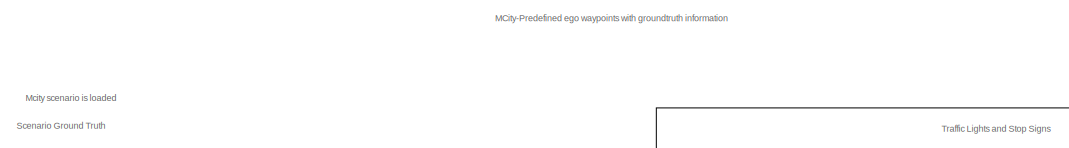
[diagram: root canvas - part 1/4, top center region]
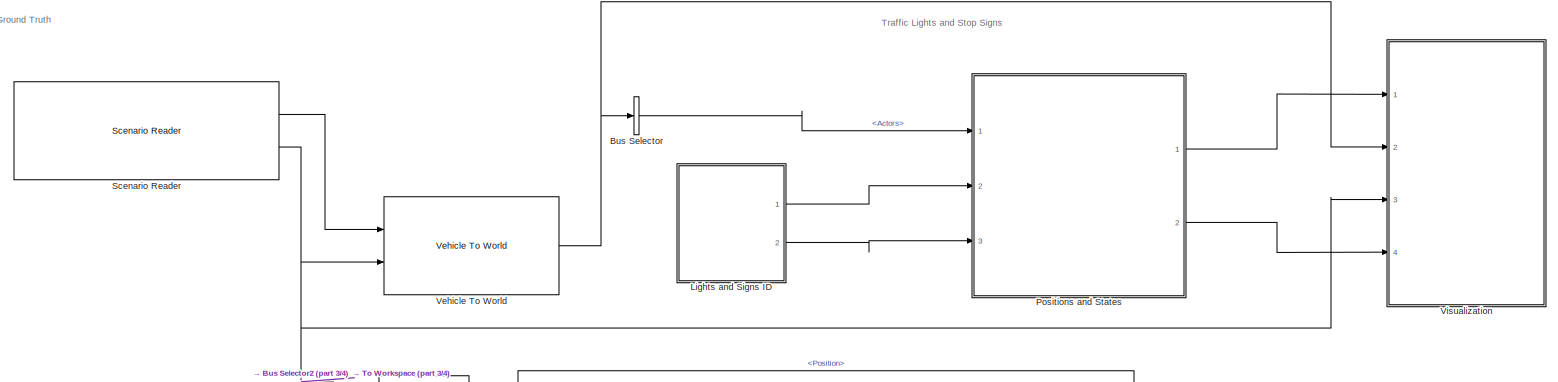
[diagram: root canvas - part 2/4, full width, middle band]
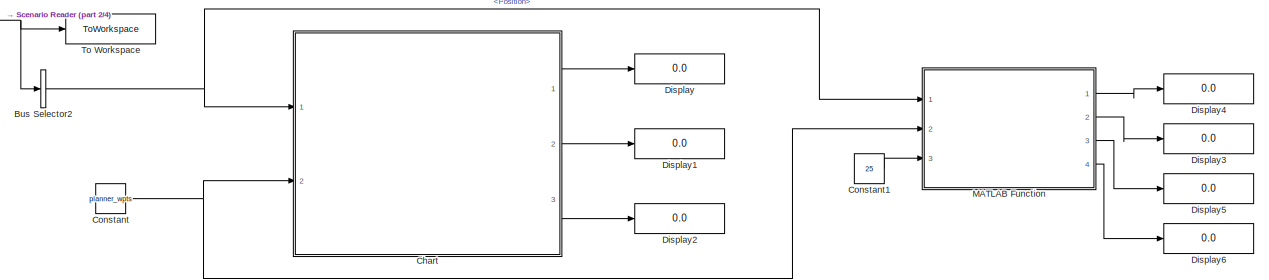
[diagram: root canvas - part 3/4, full width, bottom band]
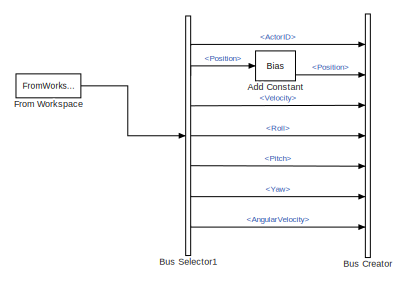
[diagram: root canvas - part 4/4, bottom left region]
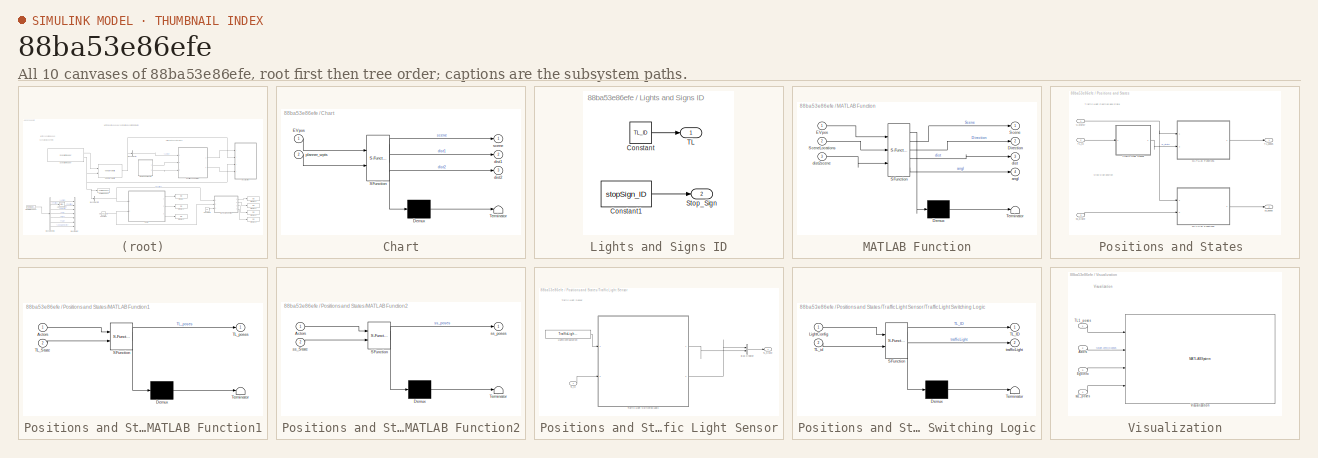
[diagram: thumbnail index - all 10 canvases of the model, root first then tree order]
MODEL slx_88ba53e86efe
KIND model
CONFIG AbsTol = auto
CONFIG EnableMultiTasking = off
CONFIG FixedStep = auto
CONFIG MaxStep = auto
CONFIG MinStep = auto
CONFIG RelTol = 1e-3
CONFIG SampleTimeConstraint = Unconstrained
CONFIG SolverName = FixedStepAuto
CONFIG StartTime = 0.0
CONFIG StopTime = stopTime
WORKSPACE source: mxarray member
WORKSPACE firstWarning = 1
WORKSPACE originalScenarioChecksum = '114339432DE22364D47BB28FC96DC10C'
BLOCK [Bias] Add Constant
  Bias = 5
  Commented = on
  SaturateOnIntegerOverflow = off
BLOCK [BusCreator] Bus Creator
  Commented = on
  DisplayOption = bar
  InheritFromInputs = on
  Inputs = 7
  OutDataTypeStr = Bus: egoout_bus
  Ports = [7, 1]
BLOCK [BusSelector] Bus Selector
  OutputSignals = Actors
  Ports = [1, 1]
BLOCK [BusSelector] Bus Selector1
  Commented = on
  OutputSignals = ActorID,Position,Velocity,Roll,Pitch,Yaw,AngularVelocity
  Ports = [1, 7]
BLOCK [BusSelector] Bus Selector2
  OutputSignals = Position
  Ports = [1, 1]
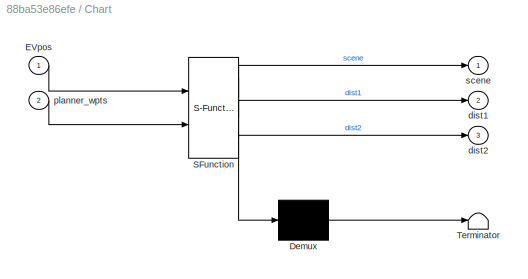
BLOCK [SubSystem] Chart
  Commented = on
  ErrorFcn = Stateflow.Translate.translate
  PermitHierarchicalResolution = ExplicitOnly
  Ports = [2, 3]
  RequestExecContextInheritance = off
  SFBlockType = Chart
  TreatAsAtomicUnit = on
BLOCK [Demux] Chart/ Demux 
  Outputs = 1
  Ports = [1, 1]
BLOCK [S-Function] Chart/ SFunction 
  EnableBusSupport = on
  FunctionName = sf_sfun
  PortCounts = [2 4]
  Ports = [2, 4]
  SFcnIsStateOwnerBlock = off
  SFunctionDeploymentMode = off
  Tag = Stateflow S-Function 4
BLOCK [Terminator] Chart/ Terminator 
BLOCK [Inport] Chart/EVpos
BLOCK [Outport] Chart/dist1
  Port = 2
BLOCK [Outport] Chart/dist2
  Port = 3
BLOCK [Inport] Chart/planner_wpts
  Port = 2
BLOCK [Outport] Chart/scene
BLOCK [Constant] Constant
  Value = planner_wpts
  VectorParams1D = off
BLOCK [Constant] Constant1
  Value = 25
BLOCK [Display] Display
  Commented = on
  Decimation = 1
  Ports = [1]
BLOCK [Display] Display1
  Commented = on
  Decimation = 1
  Ports = [1]
BLOCK [Display] Display2
  Commented = on
  Decimation = 1
  Ports = [1]
BLOCK [Display] Display3
  Decimation = 1
  Ports = [1]
BLOCK [Display] Display4
  Decimation = 1
  Ports = [1]
BLOCK [Display] Display5
  Decimation = 1
  Ports = [1]
BLOCK [Display] Display6
  Decimation = 1
  Ports = [1]
BLOCK [FromWorkspace] From Workspace
  Commented = on
  OutDataTypeStr = Bus: egoout_bus
  SampleTime = Ts
  VariableName = egoout
BLOCK [SubSystem] Lights and Signs ID
  Ports = [0, 2]
  RequestExecContextInheritance = off
BLOCK [Constant] Lights and Signs ID/Constant
  Value = TL_ID
BLOCK [Constant] Lights and Signs ID/Constant1
  Value = stopSign_ID
BLOCK [Outport] Lights and Signs ID/Stop_Sign
  Port = 2
BLOCK [Outport] Lights and Signs ID/TL
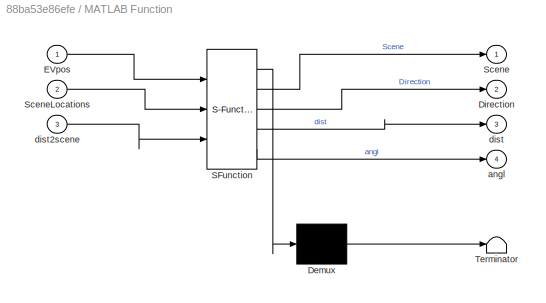
BLOCK [SubSystem] MATLAB Function
  ErrorFcn = Stateflow.Translate.translate
  PermitHierarchicalResolution = ExplicitOnly
  Ports = [3, 4]
  RequestExecContextInheritance = off
  SFBlockType = MATLAB Function
  TreatAsAtomicUnit = on
BLOCK [Demux] MATLAB Function/ Demux 
  Outputs = 1
  Ports = [1, 1]
BLOCK [S-Function] MATLAB Function/ SFunction 
  EnableBusSupport = on
  FunctionName = sf_sfun
  PortCounts = [3 5]
  Ports = [3, 5]
  SFcnIsStateOwnerBlock = off
  SFunctionDeploymentMode = off
  Tag = Stateflow S-Function 5
BLOCK [Terminator] MATLAB Function/ Terminator 
BLOCK [Outport] MATLAB Function/Direction
  Port = 2
BLOCK [Inport] MATLAB Function/EVpos
BLOCK [Outport] MATLAB Function/Scene
BLOCK [Inport] MATLAB Function/SceneLocations
  Port = 2
BLOCK [Outport] MATLAB Function/angl
  Port = 4
BLOCK [Outport] MATLAB Function/dist
  Port = 3
BLOCK [Inport] MATLAB Function/dist2scene
  Port = 3
BLOCK [SubSystem] Positions and States 
  Ports = [3, 2]
  RequestExecContextInheritance = off
BLOCK [Inport] Positions and States /<Actors>
BLOCK [SubSystem] Positions and States /MATLAB Function1
  ErrorFcn = Stateflow.Translate.translate
  PermitHierarchicalResolution = ExplicitOnly
  Ports = [2, 1]
  RequestExecContextInheritance = off
  SFBlockType = MATLAB Function
  TreatAsAtomicUnit = on
BLOCK [Demux] Positions and States /MATLAB Function1/ Demux 
  Outputs = 1
  Ports = [1, 1]
BLOCK [S-Function] Positions and States /MATLAB Function1/ SFunction 
  EnableBusSupport = on
  FunctionName = sf_sfun
  PortCounts = [2 2]
  Ports = [2, 2]
  SFcnIsStateOwnerBlock = off
  SFunctionDeploymentMode = off
  Tag = Stateflow S-Function 2
BLOCK [Terminator] Positions and States /MATLAB Function1/ Terminator 
BLOCK [Inport] Positions and States /MATLAB Function1/Actors
BLOCK [Inport] Positions and States /MATLAB Function1/TL_State
  Port = 2
BLOCK [Outport] Positions and States /MATLAB Function1/TL_poses
BLOCK [SubSystem] Positions and States /MATLAB Function2
  ErrorFcn = Stateflow.Translate.translate
  PermitHierarchicalResolution = ExplicitOnly
  Ports = [2, 1]
  RequestExecContextInheritance = off
  SFBlockType = MATLAB Function
  TreatAsAtomicUnit = on
BLOCK [Demux] Positions and States /MATLAB Function2/ Demux 
  Outputs = 1
  Ports = [1, 1]
BLOCK [S-Function] Positions and States /MATLAB Function2/ SFunction 
  EnableBusSupport = on
  FunctionName = sf_sfun
  PortCounts = [2 2]
  Ports = [2, 2]
  SFcnIsStateOwnerBlock = off
  SFunctionDeploymentMode = off
  Tag = Stateflow S-Function 1
BLOCK [Terminator] Positions and States /MATLAB Function2/ Terminator 
BLOCK [Inport] Positions and States /MATLAB Function2/Actors
BLOCK [Inport] Positions and States /MATLAB Function2/ss_State
  Port = 2
BLOCK [Outport] Positions and States /MATLAB Function2/ss_poses
BLOCK [Inport] Positions and States /TL_id
  Port = 2
BLOCK [Outport] Positions and States /TL_poses
BLOCK [SubSystem] Positions and States /Traffic Light Sensor
  Ports = [1, 1]
  RequestExecContextInheritance = off
BLOCK [BusCreator] Positions and States /Traffic Light Sensor/Bus Creator
  DisplayOption = bar
  InheritFromInputs = on
  Inputs = 2
  Ports = [2, 1]
BLOCK [Constant] Positions and States /Traffic Light Sensor/LightConfiguration
  Value = TrafficLightSensorModeSelection
BLOCK [Outport] Positions and States /Traffic Light Sensor/TL_State
BLOCK [Inport] Positions and States /Traffic Light Sensor/TL_id
BLOCK [SubSystem] Positions and States /Traffic Light Sensor/Traffic Light Switching Logic
  ErrorFcn = Stateflow.Translate.translate
  PermitHierarchicalResolution = ExplicitOnly
  Ports = [2, 2]
  RequestExecContextInheritance = off
  SFBlockType = Chart
  TreatAsAtomicUnit = on
BLOCK [Demux] Positions and States /Traffic Light Sensor/Traffic Light Switching Logic/ Demux 
  Outputs = 1
  Ports = [1, 1]
BLOCK [S-Function] Positions and States /Traffic Light Sensor/Traffic Light Switching Logic/ SFunction 
  EnableBusSupport = on
  FunctionName = sf_sfun
  PortCounts = [2 3]
  Ports = [2, 3]
  SFcnIsStateOwnerBlock = off
  SFunctionDeploymentMode = off
  Tag = Stateflow S-Function 3
BLOCK [Terminator] Positions and States /Traffic Light Sensor/Traffic Light Switching Logic/ Terminator 
BLOCK [Inport] Positions and States /Traffic Light Sensor/Traffic Light Switching Logic/LightConfig
BLOCK [Outport] Positions and States /Traffic Light Sensor/Traffic Light Switching Logic/TL_ID
BLOCK [Inport] Positions and States /Traffic Light Sensor/Traffic Light Switching Logic/TL_id
  Port = 2
BLOCK [Outport] Positions and States /Traffic Light Sensor/Traffic Light Switching Logic/trafficLight
  Port = 2
BLOCK [Inport] Positions and States /ss_State
  Port = 3
BLOCK [Outport] Positions and States /ss_poses
  Port = 2
BLOCK [Reference] Scenario Reader  REF=drivingscenarioandsensors/Scenario Reader
  Ports = [0, 2]
  SourceBlock = drivingscenarioandsensors/Scenario Reader
  SourceProductBaseCode = DR
  SourceType = driving.scenario.internal.ScenarioReader
BLOCK [ToWorkspace] To Workspace
  FixptAsFi = on
  MaxDataPoints = inf
  Ports = [1]
  SampleTime = -1
  SaveFormat = Timeseries
  VariableName = EgoPose
BLOCK [Reference] Vehicle To World  REF=drivingscenarioandsensors/Vehicle To World
  Ports = [2, 1]
  SourceBlock = drivingscenarioandsensors/Vehicle To World
  SourceProductBaseCode = DR
  SourceType = driving.scenario.internal.VehicleToWorld
BLOCK [SubSystem] Visualization
  Ports = [4]
  RequestExecContextInheritance = off
BLOCK [Inport] Visualization/Actors
  Port = 2
BLOCK [Inport] Visualization/EgoInfo
  Port = 3
BLOCK [Inport] Visualization/TL1_poses
BLOCK [MATLABSystem] Visualization/Visualization
  MaskDisplay = disp('TL_vis');\nport_label('input',1,'TL');\nport_label('input',2,'TargetPoses');\nport_label('input',3,'EgoInfo');\nport_label('input',4,'SS');
  MaskType = TL_vis
  Ports = [4]
  System = TL_vis
BLOCK [Inport] Visualization/ss1_poses
  Port = 4
ANNOTATION (root): MCity-Predefined ego waypoints with groundtruth information
ANNOTATION (root): Mcity scenario is loaded
ANNOTATION (root): Scenario Ground Truth
ANNOTATION (root): Traffic Lights and Stop Signs
ANNOTATION Positions and States : Stop Sign positon
ANNOTATION Positions and States : Traffic Light Position and State
ANNOTATION Positions and States /Traffic Light Sensor: Traffic Light Sensor
ANNOTATION Visualization: Visualization
LINE Add Constant:1 -> Bus Creator:2
LINE Bus Selector1:1 -> Bus Creator:1
LINE Bus Selector1:2 -> Add Constant:1
LINE Bus Selector1:3 -> Bus Creator:3
LINE Bus Selector1:4 -> Bus Creator:4
LINE Bus Selector1:5 -> Bus Creator:5
LINE Bus Selector1:6 -> Bus Creator:6
LINE Bus Selector1:7 -> Bus Creator:7
NET Bus Selector2:1 -> Chart:1, MATLAB Function:1
LINE Bus Selector:1 -> Positions and States :1
LINE Chart:1 -> Display:1
LINE Chart:2 -> Display1:1
LINE Chart:3 -> Display2:1
LINE Constant1:1 -> MATLAB Function:3
NET Constant:1 -> Chart:2, MATLAB Function:2
LINE From Workspace:1 -> Bus Selector1:1
LINE Lights and Signs ID/Constant1:1 -> Lights and Signs ID/Stop_Sign:1
LINE Lights and Signs ID/Constant:1 -> Lights and Signs ID/TL:1
LINE Lights and Signs ID:1 -> Positions and States :2
LINE Lights and Signs ID:2 -> Positions and States :3
LINE MATLAB Function:1 -> Display4:1
LINE MATLAB Function:2 -> Display3:1
LINE MATLAB Function:3 -> Display5:1
LINE MATLAB Function:4 -> Display6:1
NET Positions and States /<Actors>:1 -> Positions and States /MATLAB Function1:1, Positions and States /MATLAB Function2:1
LINE Positions and States /MATLAB Function1:1 -> Positions and States /TL_poses:1
LINE Positions and States /MATLAB Function2:1 -> Positions and States /ss_poses:1
LINE Positions and States /TL_id:1 -> Positions and States /Traffic Light Sensor:1
LINE Positions and States /Traffic Light Sensor/Bus Creator:1 -> Positions and States /Traffic Light Sensor/TL_State:1
LINE Positions and States /Traffic Light Sensor/LightConfiguration:1 -> Positions and States /Traffic Light Sensor/Traffic Light Switching Logic:1
LINE Positions and States /Traffic Light Sensor/TL_id:1 -> Positions and States /Traffic Light Sensor/Traffic Light Switching Logic:2
LINE Positions and States /Traffic Light Sensor/Traffic Light Switching Logic:1 -> Positions and States /Traffic Light Sensor/Bus Creator:2
LINE Positions and States /Traffic Light Sensor/Traffic Light Switching Logic:2 -> Positions and States /Traffic Light Sensor/Bus Creator:1
LINE Positions and States /Traffic Light Sensor:1 -> Positions and States /MATLAB Function1:2
LINE Positions and States /ss_State:1 -> Positions and States /MATLAB Function2:2
LINE Positions and States :1 -> Visualization:1
LINE Positions and States :2 -> Visualization:4
LINE Scenario Reader:1 -> Vehicle To World:1
NET Scenario Reader:2 -> Bus Selector2:1, To Workspace:1, Vehicle To World:2, Visualization:3
NET Vehicle To World:1 -> Bus Selector:1, Visualization:2
LINE Visualization/Actors:1 -> Visualization/Visualization:2
LINE Visualization/EgoInfo:1 -> Visualization/Visualization:3
LINE Visualization/TL1_poses:1 -> Visualization/Visualization:1
LINE Visualization/ss1_poses:1 -> Visualization/Visualization:4
note: NET lines group one-source signal fan-out (src -> all destinations, sorted); 1:1 wires keep LINE
CHART Chart states=3 transitions=5
  STATE_LABEL 'Check_Scenario\nen,du:\ndist1 = norm(planner_wpts(1,:) - EVpos(1:2));\ndist2 = norm(planner_wpts(2,:) - EVpos(1:2));\nscene = 0;'
  STATE_LABEL 'Intersection_4W\nen,du:\nscene = 1;\ndist1 = norm(planner_wpts(1,:) - EVpos(1:2));\ndist2 = norm(planner_wpts(2,:) - EVpos(1:2));'
  STATE_LABEL 'Intersection_TL\nen,du:\nscene = 2;\ndist1 = norm(planner_wpts(1,:) - EVpos(1:2));\ndist2 = norm(planner_wpts(2,:) - EVpos(1:2));'
CHART MATLAB Function states=1 transitions=1
  STATE_LABEL 'eML_blk_kernel()'
  STATE_LABEL 'SCRIPT:\nfunction [Scene,Direction,dist,angl] = ScenarioFinder(EVpos,SceneLocations,dist2scene)\n\n    % dist = zeros(1,length(SceneLocations));\n    for j = 1:length(SceneLocations)\n        distXY = SceneLocations(j,:) - EVpos(1:2);\n        dist = norm(distXY);\n\n        if (dist <= dist2scene)\n            Scene = j;\n            angl = atan2d(distXY(2),distXY(1));\n\n            if angl < 0\n            ...<+564ch>'
CHART Positions and States /MATLAB Function2 states=1 transitions=1
  STATE_LABEL 'eML_blk_kernel()'
  STATE_LABEL "SCRIPT:\n\nfunction ss_poses = findssposes(Actors, ss_State)\n\nn=length(ss_State);\nss_poses=zeros(n,4);\nindices=zeros(n,1);\nID=zeros(length(Actors),1);\n\nfor i=1:length(Actors)\n ID(i)=Actors(i).ActorID;\nend\n\nindices=find(ismember(ID,ss_State));\nif(~isempty(indices))\n    \n    for i=1:n\n        ss_poses(i,:)=([Actors(indices(i)).Position(:)',ss_State(i)]);\n    end\nend\n\nss_poses(ss_poses==0)=NaN;\n\n\n\n\n\n\n%...<+385ch>"
CHART Positions and States /MATLAB Function1 states=1 transitions=1
  STATE_LABEL 'eML_blk_kernel()'
  STATE_LABEL "SCRIPT:\n\nfunction TL_poses = findTLposes(Actors, TL_State)\nn=length(TL_State);\nTL_poses=zeros(n/2,5);\nindices=zeros(n/2,1);\nID=zeros(length(Actors),1);\n\nfor i=1:length(Actors)\n ID(i)=Actors(i).ActorID;\nend\n\nindices=find(ismember(ID,TL_State(n/2+1:end)));\nif (~isempty(indices))\n\n    for i=1:n/2\n        TL_poses(i,:)=([Actors(indices(i)).Position(:)',TL_State(i),ID(indices(i))]);\n\n    end\nend\nTL_pos...<+25ch>"
CHART Positions and States /Traffic Light Sensor/Traffic Light Switching Logic states=7 transitions=8
  STATE_LABEL 'STEADYRED\nentry:\ntrafficLight(:)= Red; TL_ID=TL_id;'
  STATE_LABEL 'STEADYGREEN\nentry:\ntrafficLight(:)= Green; TL_ID=TL_id;\n'
  STATE_LABEL 'START\nentry:\ntrafficLight=TL_id;\ntrafficLight(:)= Black;TL_ID=TL_id;'
  STATE_LABEL 'TRAFFICLIGHT_ODDYELLOW_EVENRED\nentry:\ntrafficLight(1:2:end)=Yellow;TL_ID(1:2:end)=TL_id(1:2:end);\ntrafficLight(2:2:end) = Red;TL_ID(2:2:end)=TL_id(2:2:end);'
  STATE_LABEL 'TRAFFICLIGHT_ODDGREEN_EVENRED\nentry:\ntrafficLight(1:2:end)=Green;TL_ID(1:2:end)=TL_id(1:2:end);\ntrafficLight(2:2:end) = Red;TL_ID(2:2:end)=TL_id(2:2:end);\n'
  STATE_LABEL 'TRAFFICLIGHT_ODDRED_EVENYELLOW\nentry:\ntrafficLight(1:2:end)=Red;TL_ID(1:2:end)=TL_id(1:2:end);\ntrafficLight(2:2:end) = Yellow;TL_ID(2:2:end)=TL_id(2:2:end);\n'
  STATE_LABEL 'TRAFFICLIGHT_ODDRED_EVENGREEN\nentry:\ntrafficLight(1:2:end)=Red;TL_ID(1:2:end)=TL_id(1:2:end);\ntrafficLight(2:2:end) = Green;TL_ID(2:2:end)=TL_id(2:2:end);'
CHART  states=0 transitions=0
CHART  states=0 transitions=0
CHART  states=0 transitions=0
CHART  states=0 transitions=0
CHART  states=0 transitions=0
